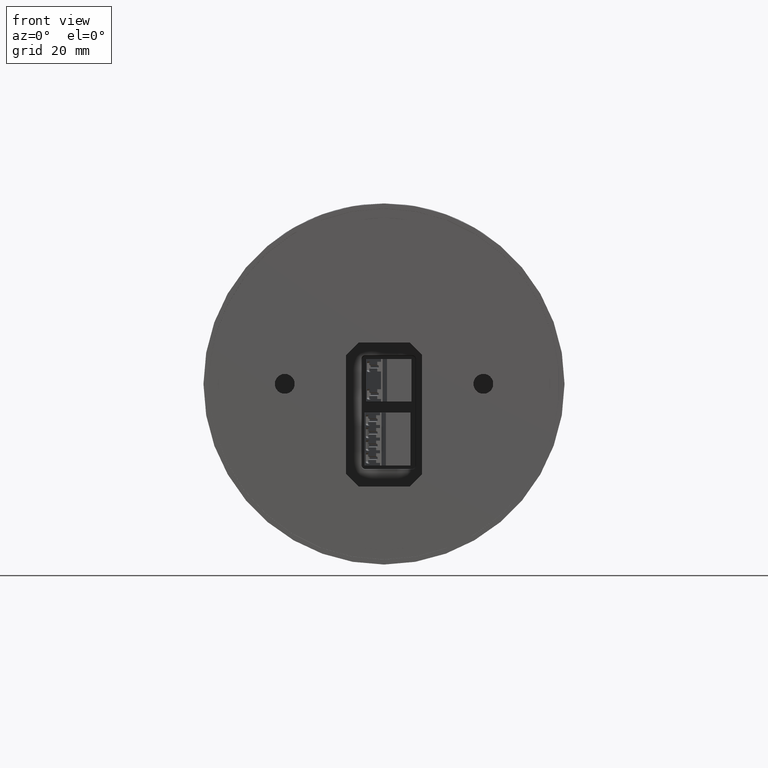
[diagram: clean part render]
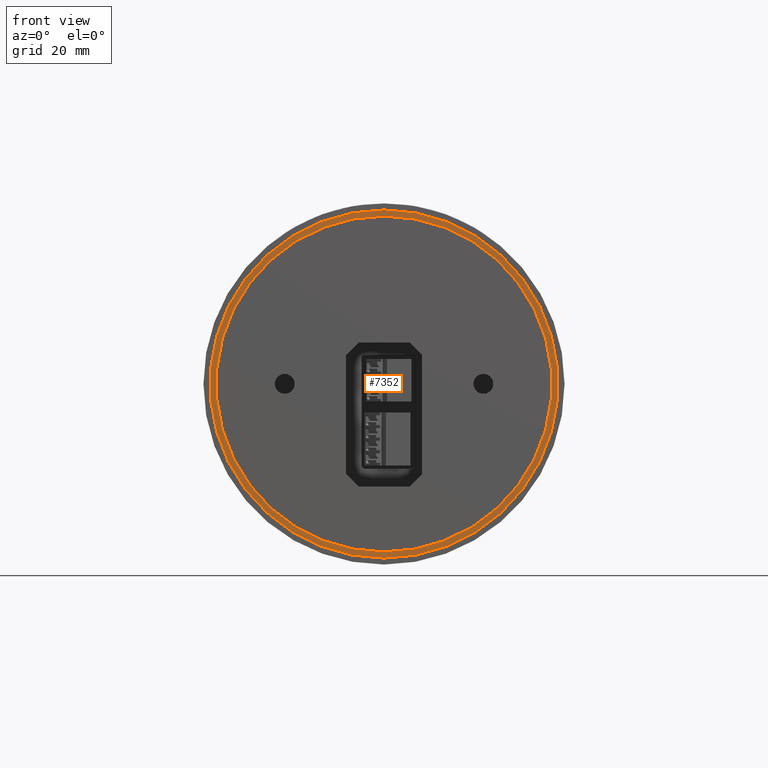
[diagram: same view with one face highlighted and labeled with its STEP entity id]
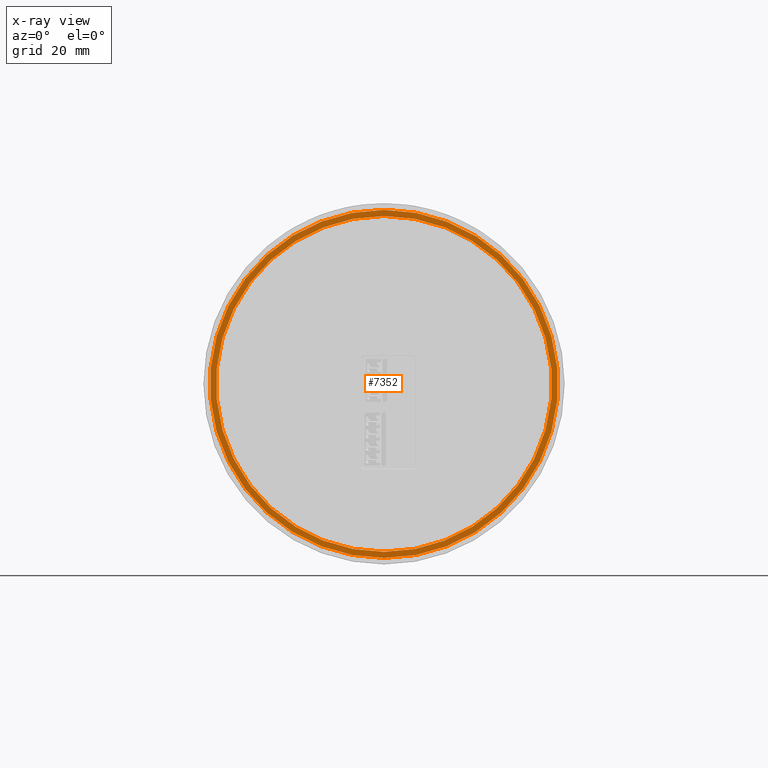
[diagram: x-ray of the same camera — body ghosted, the highlighted face saturated]
A machine part, front view. The second image highlights one B-rep face of the part: STEP entity #7352.
The next image is the same camera in x-ray: the body ghosted, the highlighted face saturated — about 0% of this face is hidden behind the body in this view.
In plain terms, the highlighted planar face has unit normal (-0, 1, 0).
Its self-contained STEP definition (entity closure, byte-faithful):
#741 = AXIS2_PLACEMENT_3D ( 'NONE', #5970, #3770, #1560 ) ;
#1212 = CARTESIAN_POINT ( 'NONE',  ( 0.000000000000000000, 0.000000000000000000, -46.50000000000000000 ) ) ;
#1283 = CARTESIAN_POINT ( 'NONE',  ( 5.902797571890242503E-15, 0.000000000000000000, 48.20000000000000284 ) ) ;
#1560 = DIRECTION ( 'NONE',  ( 0.000000000000000000, 0.000000000000000000, 1.000000000000000000 ) ) ;
#1611 = VERTEX_POINT ( 'NONE', #1212 ) ;
#1739 = AXIS2_PLACEMENT_3D ( 'NONE', #12402, #10528, #6250 ) ;
#1844 = DIRECTION ( 'NONE',  ( 0.000000000000000000, 0.000000000000000000, -1.000000000000000000 ) ) ;
#2404 = EDGE_CURVE ( 'NONE', #4871, #11050, #10337, .T. ) ;
#2678 = EDGE_CURVE ( 'NONE', #11050, #4871, #4486, .T. ) ;
#2931 = VERTEX_POINT ( 'NONE', #6421 ) ;
#3322 = FACE_OUTER_BOUND ( 'NONE', #7466, .T. ) ;
#3770 = DIRECTION ( 'NONE',  ( 0.000000000000000000, 1.000000000000000000, 0.000000000000000000 ) ) ;
#3910 = ORIENTED_EDGE ( 'NONE', *, *, #2404, .F. ) ;
#4423 = DIRECTION ( 'NONE',  ( -0.000000000000000000, 1.000000000000000000, 0.000000000000000000 ) ) ;
#4486 = CIRCLE ( 'NONE', #741, 48.20000000000000284 ) ;
#4632 = CARTESIAN_POINT ( 'NONE',  ( 0.000000000000000000, 0.000000000000000000, 0.000000000000000000 ) ) ;
#4871 = VERTEX_POINT ( 'NONE', #1283 ) ;
#5072 = AXIS2_PLACEMENT_3D ( 'NONE', #7024, #12210, #12486 ) ;
#5970 = CARTESIAN_POINT ( 'NONE',  ( 0.000000000000000000, 0.000000000000000000, 0.000000000000000000 ) ) ;
#6250 = DIRECTION ( 'NONE',  ( 0.000000000000000000, 0.000000000000000000, 1.000000000000000000 ) ) ;
#6421 = CARTESIAN_POINT ( 'NONE',  ( 5.694607616035192278E-15, 0.000000000000000000, 46.50000000000000000 ) ) ;
#6801 = AXIS2_PLACEMENT_3D ( 'NONE', #4632, #4423, #9663 ) ;
#7024 = CARTESIAN_POINT ( 'NONE',  ( 0.000000000000000000, 0.000000000000000000, 0.000000000000000000 ) ) ;
#7072 = CARTESIAN_POINT ( 'NONE',  ( 0.000000000000000000, 0.000000000000000000, -48.20000000000000284 ) ) ;
#7086 = CARTESIAN_POINT ( 'NONE',  ( 0.000000000000000000, 0.000000000000000000, 0.000000000000000000 ) ) ;
#7352 = ADVANCED_FACE ( 'NONE', ( #9732, #3322 ), #11874, .F. ) ;
#7466 = EDGE_LOOP ( 'NONE', ( #12556, #3910 ) ) ;
#8189 = EDGE_CURVE ( 'NONE', #1611, #2931, #8341, .T. ) ;
#8341 = CIRCLE ( 'NONE', #8573, 46.50000000000000000 ) ;
#8491 = ORIENTED_EDGE ( 'NONE', *, *, #12057, .F. ) ;
#8573 = AXIS2_PLACEMENT_3D ( 'NONE', #7086, #11306, #1844 ) ;
#9038 = CIRCLE ( 'NONE', #5072, 46.50000000000000000 ) ;
#9663 = DIRECTION ( 'NONE',  ( 1.000000000000000000, 0.000000000000000000, 0.000000000000000000 ) ) ;
#9732 = FACE_BOUND ( 'NONE', #12668, .T. ) ;
#10337 = CIRCLE ( 'NONE', #1739, 48.20000000000000284 ) ;
#10528 = DIRECTION ( 'NONE',  ( 0.000000000000000000, 1.000000000000000000, 0.000000000000000000 ) ) ;
#10706 = ORIENTED_EDGE ( 'NONE', *, *, #8189, .F. ) ;
#11050 = VERTEX_POINT ( 'NONE', #7072 ) ;
#11306 = DIRECTION ( 'NONE',  ( 0.000000000000000000, -1.000000000000000000, 0.000000000000000000 ) ) ;
#11874 = PLANE ( 'NONE',  #6801 ) ;
#12057 = EDGE_CURVE ( 'NONE', #2931, #1611, #9038, .T. ) ;
#12210 = DIRECTION ( 'NONE',  ( 0.000000000000000000, -1.000000000000000000, 0.000000000000000000 ) ) ;
#12402 = CARTESIAN_POINT ( 'NONE',  ( 0.000000000000000000, 0.000000000000000000, 0.000000000000000000 ) ) ;
#12486 = DIRECTION ( 'NONE',  ( 0.000000000000000000, 0.000000000000000000, -1.000000000000000000 ) ) ;
#12556 = ORIENTED_EDGE ( 'NONE', *, *, #2678, .F. ) ;
#12668 = EDGE_LOOP ( 'NONE', ( #10706, #8491 ) ) ;